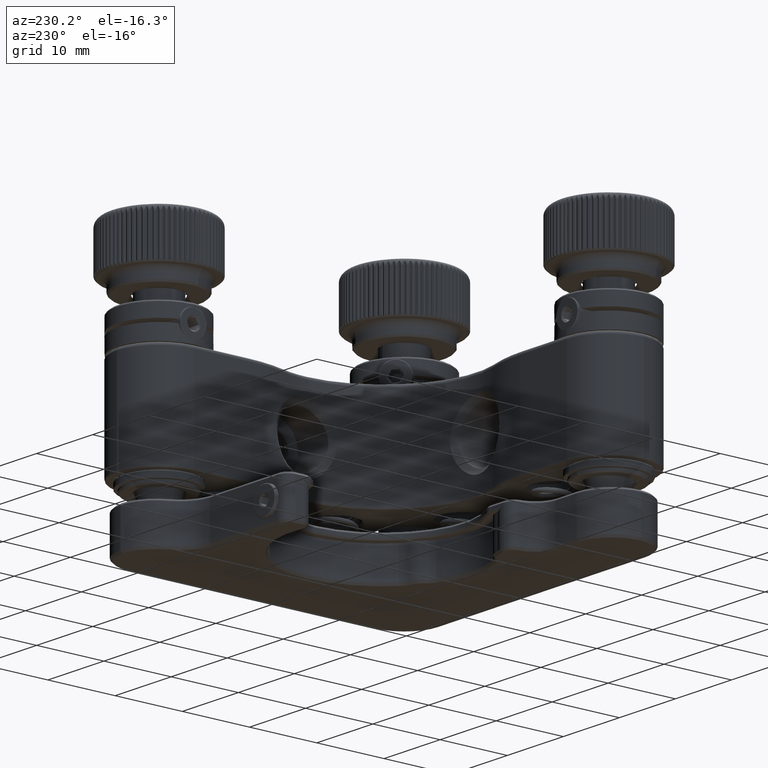
[diagram: clean part render]
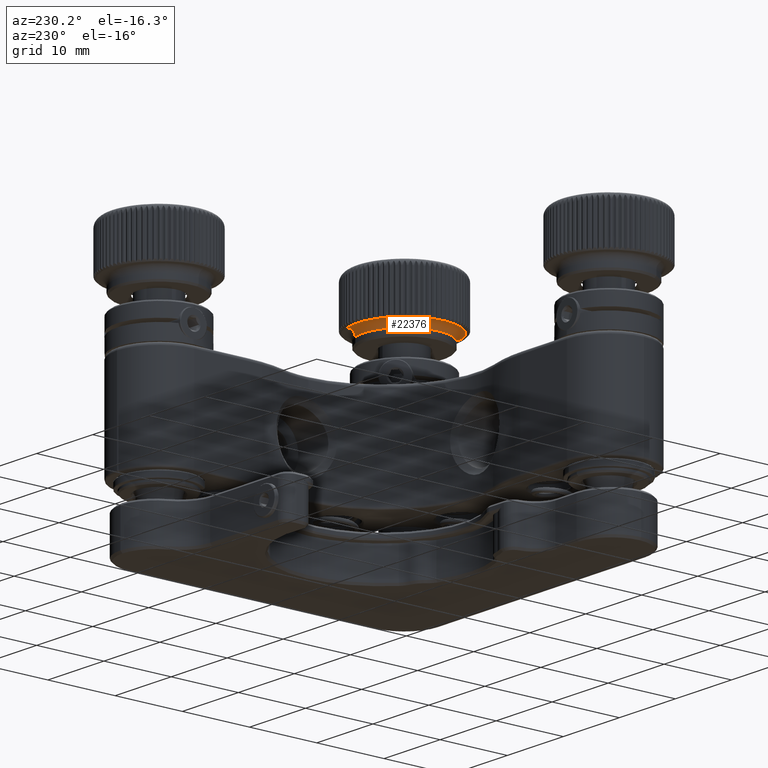
[diagram: same view with one face highlighted and labeled with its STEP entity id]
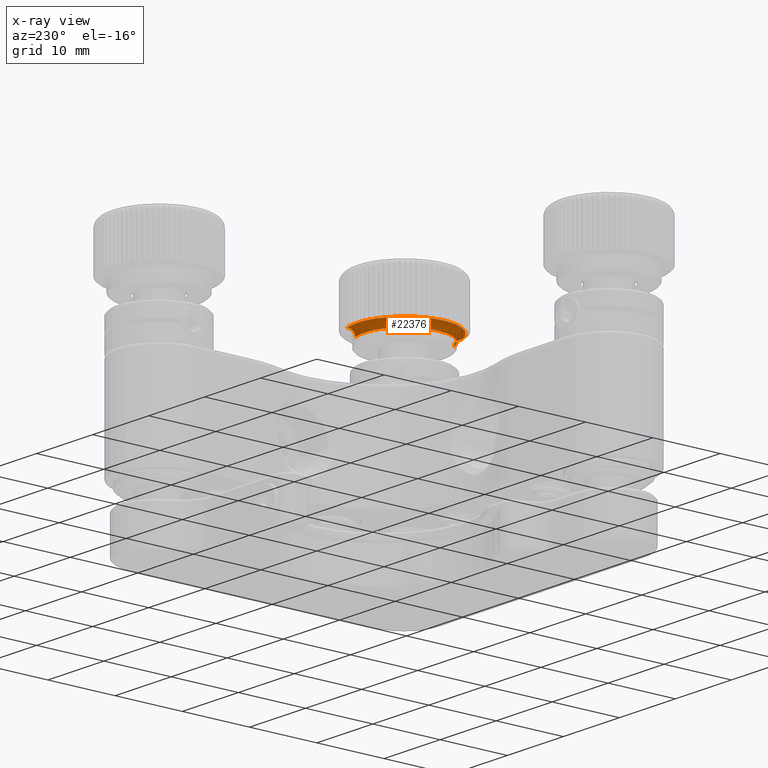
[diagram: x-ray of the same camera — body ghosted, the highlighted face saturated]
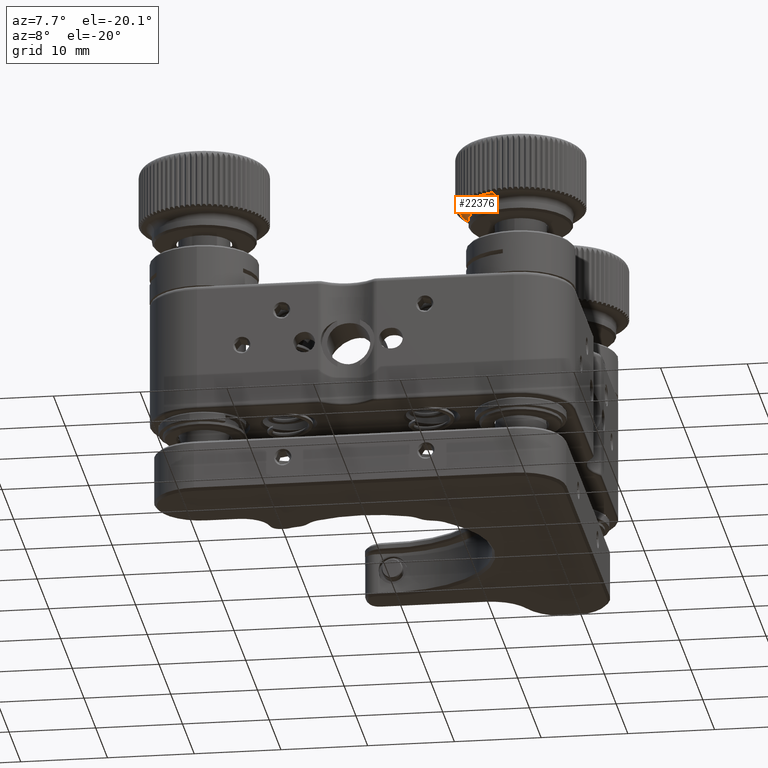
[diagram: same view with one face highlighted and labeled with its STEP entity id]
A machine part, auxiliary view. The second image highlights one B-rep face of the part: STEP entity #22376.
The next image is the same camera in x-ray: the body ghosted, the highlighted face saturated — about 0% of this face is hidden behind the body in this view.
A second angle (auxiliary view) of the same face is appended — the face is thin or edge-on in the first view.
In plain terms, the highlighted toroidal blend (fillet) surface has major radius 7 mm and minor (blend) radius 1 mm.
Its self-contained STEP definition (entity closure, byte-faithful):
#1433 = TOROIDAL_SURFACE ( 'NONE', #43178, 7.000000000000000888, 1.000000000000000000 ) ;
#1653 = CARTESIAN_POINT ( 'NONE',  ( 16.25325089292345737, -23.90800256304192217, 16.00214198694701295 ) ) ;
#2457 = DIRECTION ( 'NONE',  ( 0.9430004271736546206, -0.3327915178460905676, -1.801331683164755255E-16 ) ) ;
#4995 = DIRECTION ( 'NONE',  ( -0.9430004271736546206, 0.3327915178460906787, 1.801331683164755255E-16 ) ) ;
#5644 = CARTESIAN_POINT ( 'NONE',  ( 20.57954062492263958, -11.64899700978441288, 17.00214198694701651 ) ) ;
#5986 = AXIS2_PLACEMENT_3D ( 'NONE', #42272, #4995, #50449 ) ;
#7530 = DIRECTION ( 'NONE',  ( 0.3327915178460907897, 0.9430004271736546206, 0.000000000000000000 ) ) ;
#9614 = DIRECTION ( 'NONE',  ( -1.665334536937737769E-16, 6.938893903907254262E-17, -1.000000000000000000 ) ) ;
#11035 = CIRCLE ( 'NONE', #37079, 6.000000000000000000 ) ;
#12265 = VERTEX_POINT ( 'NONE', #18333 ) ;
#14832 = CARTESIAN_POINT ( 'NONE',  ( 18.25000000000000355, -18.24999999999999645, 17.00214198694701651 ) ) ;
#15785 = CARTESIAN_POINT ( 'NONE',  ( 20.24674910707654618, -12.59199743695806717, 16.00214198694701295 ) ) ;
#17499 = FACE_OUTER_BOUND ( 'NONE', #20516, .T. ) ;
#17998 = CIRCLE ( 'NONE', #44058, 7.000000000000000888 ) ;
#18333 = CARTESIAN_POINT ( 'NONE',  ( 15.92045937507736930, -24.85100299021558001, 17.00214198694701651 ) ) ;
#19863 = DIRECTION ( 'NONE',  ( 0.3327915178460916223, 0.9430004271736543986, 0.000000000000000000 ) ) ;
#20434 = ORIENTED_EDGE ( 'NONE', *, *, #32759, .T. ) ;
#20516 = EDGE_LOOP ( 'NONE', ( #35481, #20434, #36816, #33131 ) ) ;
#22376 = ADVANCED_FACE ( 'NONE', ( #17499 ), #1433, .F. ) ;
#23385 = CIRCLE ( 'NONE', #5986, 1.000000000000000666 ) ;
#23806 = DIRECTION ( 'NONE',  ( 1.665334536937737769E-16, -6.938893903907254262E-17, 1.000000000000000000 ) ) ;
#23941 = CARTESIAN_POINT ( 'NONE',  ( 15.92045937507736930, -24.85100299021558001, 16.00214198694701295 ) ) ;
#24258 = EDGE_CURVE ( 'NONE', #39211, #36677, #11035, .T. ) ;
#24591 = EDGE_CURVE ( 'NONE', #52569, #12265, #17998, .T. ) ;
#29776 = DIRECTION ( 'NONE',  ( 0.3327915178460904566, 0.9430004271736547317, 1.001287832806950577E-17 ) ) ;
#31440 = DIRECTION ( 'NONE',  ( 0.3327915178460908452, 0.9430004271736545096, 0.000000000000000000 ) ) ;
#32759 = EDGE_CURVE ( 'NONE', #39211, #12265, #36076, .T. ) ;
#33131 = ORIENTED_EDGE ( 'NONE', *, *, #34660, .F. ) ;
#34660 = EDGE_CURVE ( 'NONE', #36677, #52569, #23385, .T. ) ;
#35481 = ORIENTED_EDGE ( 'NONE', *, *, #24258, .F. ) ;
#36076 = CIRCLE ( 'NONE', #38668, 0.9999999999999991118 ) ;
#36633 = CARTESIAN_POINT ( 'NONE',  ( 18.25000000000000355, -18.24999999999999645, 16.00214198694701295 ) ) ;
#36677 = VERTEX_POINT ( 'NONE', #15785 ) ;
#36816 = ORIENTED_EDGE ( 'NONE', *, *, #24591, .F. ) ;
#37079 = AXIS2_PLACEMENT_3D ( 'NONE', #36633, #44537, #7530 ) ;
#38175 = CARTESIAN_POINT ( 'NONE',  ( 18.25000000000000355, -18.24999999999999645, 16.00214198694701295 ) ) ;
#38668 = AXIS2_PLACEMENT_3D ( 'NONE', #23941, #2457, #19863 ) ;
#39211 = VERTEX_POINT ( 'NONE', #1653 ) ;
#42272 = CARTESIAN_POINT ( 'NONE',  ( 20.57954062492263958, -11.64899700978441288, 16.00214198694701295 ) ) ;
#43178 = AXIS2_PLACEMENT_3D ( 'NONE', #38175, #9614, #29776 ) ;
#44058 = AXIS2_PLACEMENT_3D ( 'NONE', #14832, #23806, #31440 ) ;
#44537 = DIRECTION ( 'NONE',  ( -1.665334536937737769E-16, 6.938893903907254262E-17, -1.000000000000000000 ) ) ;
#50449 = DIRECTION ( 'NONE',  ( -0.3327915178460911227, -0.9430004271736545096, 0.000000000000000000 ) ) ;
#52569 = VERTEX_POINT ( 'NONE', #5644 ) ;